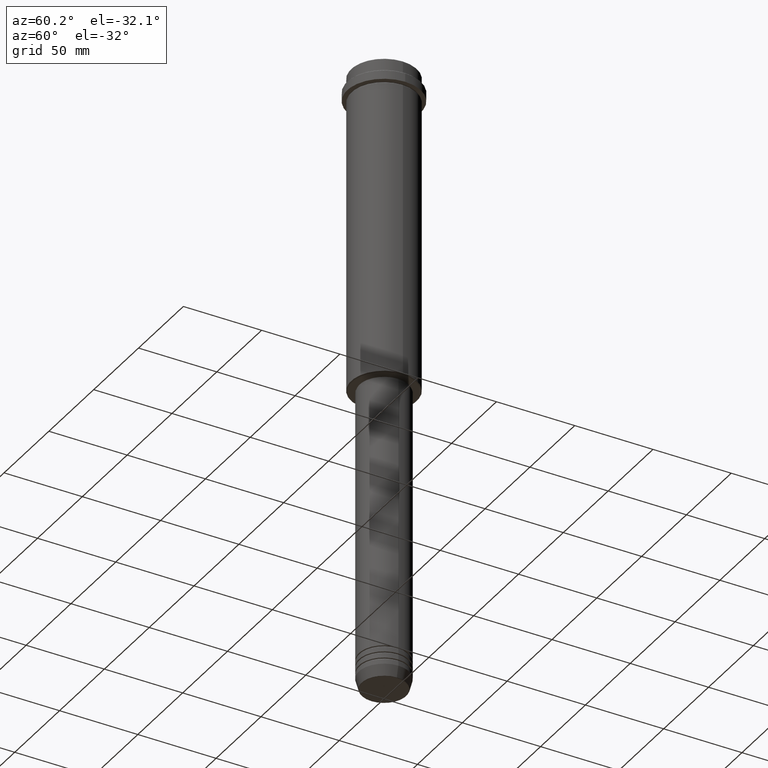
[diagram: clean part render]
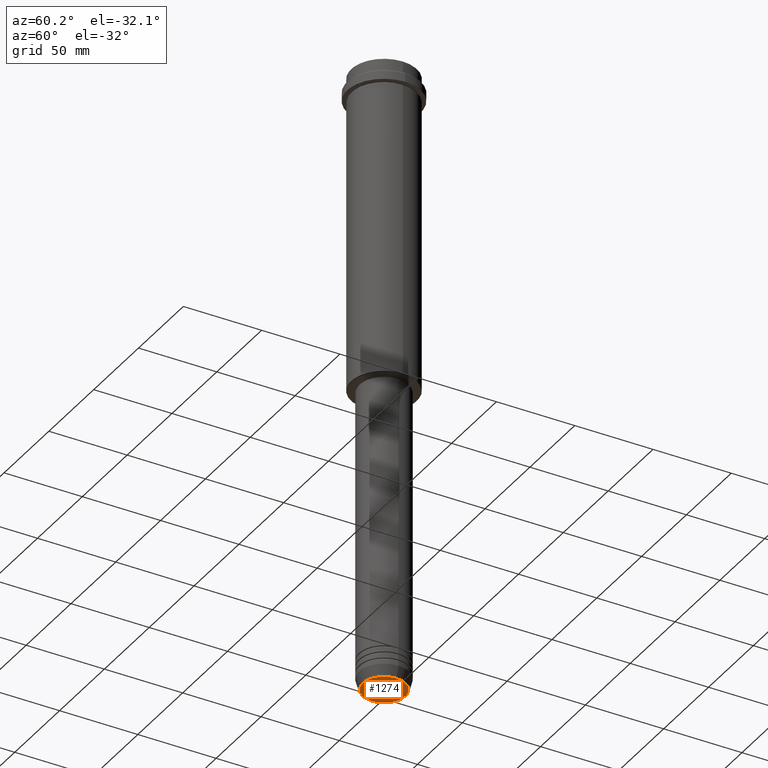
[diagram: same view with one face highlighted and labeled with its STEP entity id]
A machine part, auxiliary view. The second image highlights one B-rep face of the part: STEP entity #1274.
In plain terms, the highlighted planar face has unit normal (0, -0, 1).
Its self-contained STEP definition (entity closure, byte-faithful):
#3 = CIRCLE ( 'NONE', #663, 13.74069215899265828 ) ;
#20 = CARTESIAN_POINT ( 'NONE',  ( 13.74069215899265828, 0.000000000000000000, -400.0000000000000000 ) ) ;
#71 = CARTESIAN_POINT ( 'NONE',  ( 0.000000000000000000, 0.000000000000000000, -400.0000000000000000 ) ) ;
#108 = EDGE_CURVE ( 'NONE', #701, #1253, #3, .T. ) ;
#385 = FACE_OUTER_BOUND ( 'NONE', #1111, .T. ) ;
#432 = DIRECTION ( 'NONE',  ( 1.000000000000000000, 0.000000000000000000, 0.000000000000000000 ) ) ;
#476 = ORIENTED_EDGE ( 'NONE', *, *, #1053, .T. ) ;
#505 = DIRECTION ( 'NONE',  ( 0.000000000000000000, -0.000000000000000000, 1.000000000000000000 ) ) ;
#512 = AXIS2_PLACEMENT_3D ( 'NONE', #1123, #1328, #1335 ) ;
#663 = AXIS2_PLACEMENT_3D ( 'NONE', #764, #1410, #432 ) ;
#701 = VERTEX_POINT ( 'NONE', #20 ) ;
#764 = CARTESIAN_POINT ( 'NONE',  ( 0.000000000000000000, 0.000000000000000000, -400.0000000000000000 ) ) ;
#816 = AXIS2_PLACEMENT_3D ( 'NONE', #71, #505, #966 ) ;
#933 = CARTESIAN_POINT ( 'NONE',  ( -13.74069215899265828, 1.712322416342415986E-15, -400.0000000000000000 ) ) ;
#966 = DIRECTION ( 'NONE',  ( 1.000000000000000000, 0.000000000000000000, 0.000000000000000000 ) ) ;
#1049 = PLANE ( 'NONE',  #816 ) ;
#1053 = EDGE_CURVE ( 'NONE', #1253, #701, #1124, .T. ) ;
#1111 = EDGE_LOOP ( 'NONE', ( #1296, #476 ) ) ;
#1123 = CARTESIAN_POINT ( 'NONE',  ( 0.000000000000000000, 0.000000000000000000, -400.0000000000000000 ) ) ;
#1124 = CIRCLE ( 'NONE', #512, 13.74069215899265828 ) ;
#1253 = VERTEX_POINT ( 'NONE', #933 ) ;
#1274 = ADVANCED_FACE ( 'NONE', ( #385 ), #1049, .F. ) ;
#1296 = ORIENTED_EDGE ( 'NONE', *, *, #108, .T. ) ;
#1328 = DIRECTION ( 'NONE',  ( 0.000000000000000000, 0.000000000000000000, -1.000000000000000000 ) ) ;
#1335 = DIRECTION ( 'NONE',  ( 1.000000000000000000, 0.000000000000000000, 0.000000000000000000 ) ) ;
#1410 = DIRECTION ( 'NONE',  ( 0.000000000000000000, 0.000000000000000000, -1.000000000000000000 ) ) ;